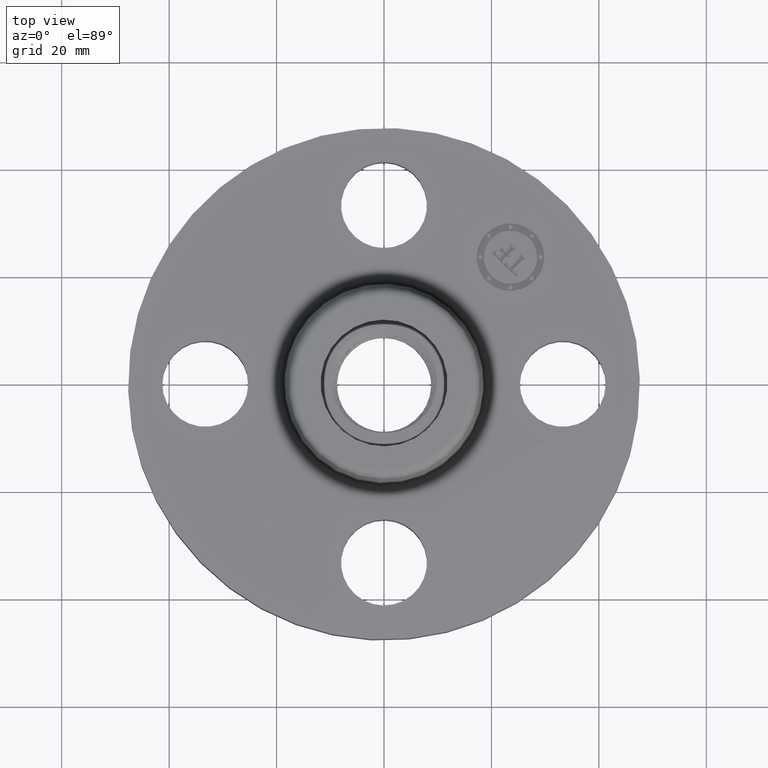
[diagram: clean part render]
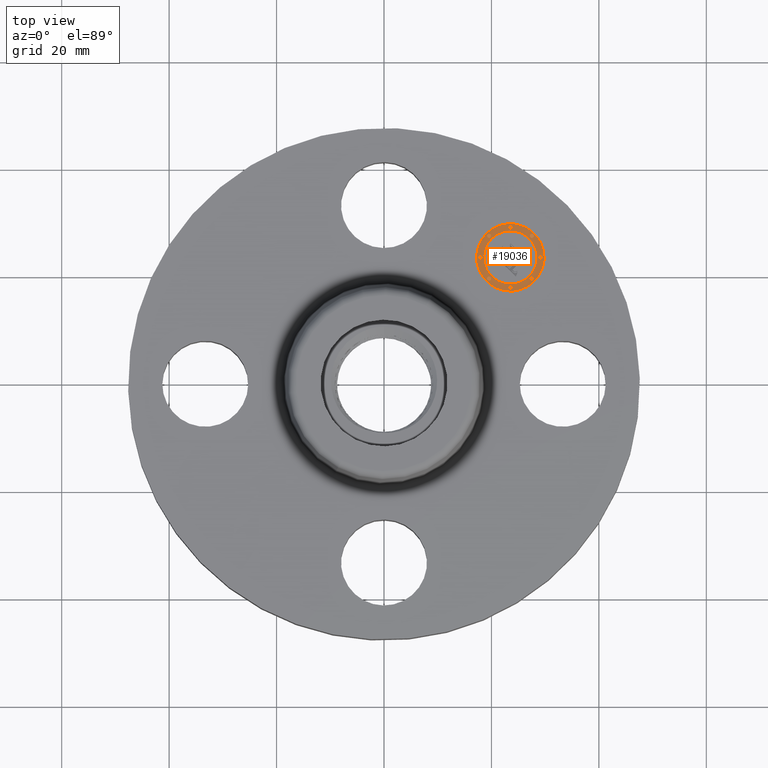
[diagram: same view with one face highlighted and labeled with its STEP entity id]
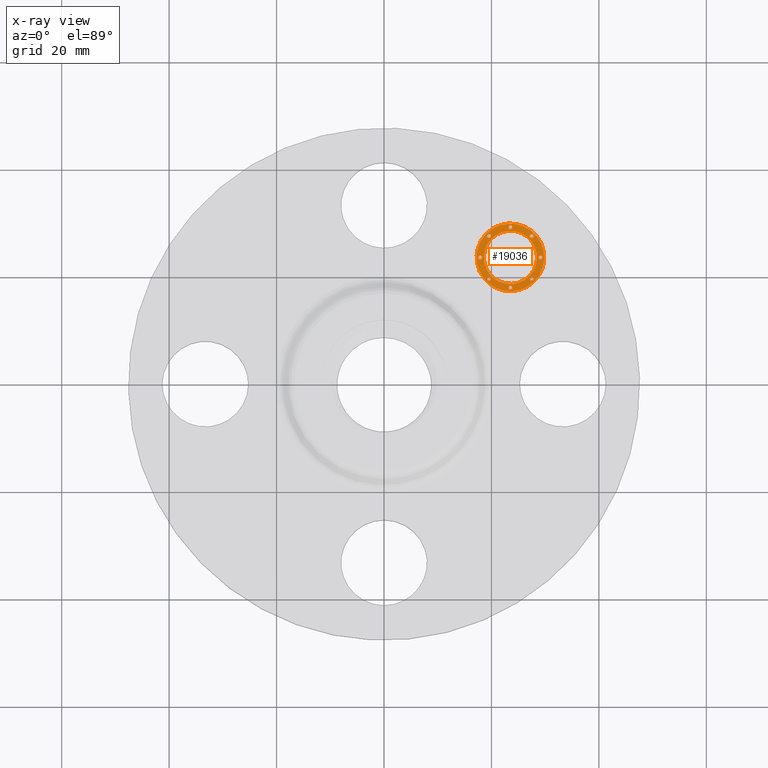
[diagram: x-ray of the same camera — body ghosted, the highlighted face saturated]
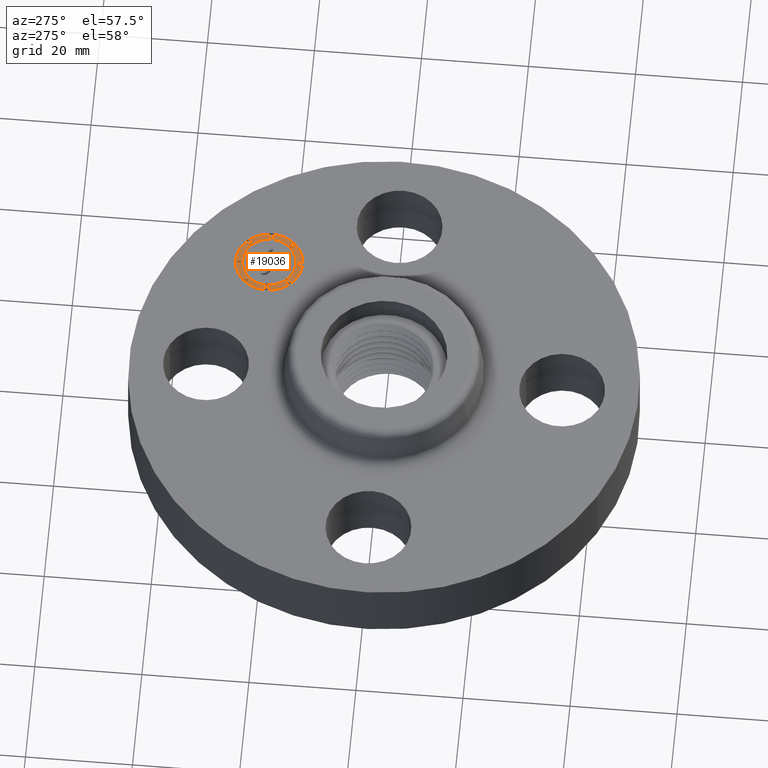
[diagram: same view with one face highlighted and labeled with its STEP entity id]
A machine part, top view. The second image highlights one B-rep face of the part: STEP entity #19036.
The next image is the same camera in x-ray: the body ghosted, the highlighted face saturated — about 0% of this face is hidden behind the body in this view.
A second angle (auxiliary view) of the same face is appended — the face is thin or edge-on in the first view.
In plain terms, the highlighted planar face has unit normal (0, -0, 1).
Its self-contained STEP definition (entity closure, byte-faithful):
#7687=AXIS2_PLACEMENT_3D('Plane Axis2P3D',#7684,#7685,#7686) ;
#18858=AXIS2_PLACEMENT_3D('Circle Axis2P3D',#18856,#18857,$) ;
#18867=AXIS2_PLACEMENT_3D('Circle Axis2P3D',#18865,#18866,$) ;
#18876=AXIS2_PLACEMENT_3D('Circle Axis2P3D',#18874,#18875,$) ;
#18885=AXIS2_PLACEMENT_3D('Circle Axis2P3D',#18883,#18884,$) ;
#18894=AXIS2_PLACEMENT_3D('Circle Axis2P3D',#18892,#18893,$) ;
#18903=AXIS2_PLACEMENT_3D('Circle Axis2P3D',#18901,#18902,$) ;
#18912=AXIS2_PLACEMENT_3D('Circle Axis2P3D',#18910,#18911,$) ;
#18921=AXIS2_PLACEMENT_3D('Circle Axis2P3D',#18919,#18920,$) ;
#18930=AXIS2_PLACEMENT_3D('Circle Axis2P3D',#18928,#18929,$) ;
#18939=AXIS2_PLACEMENT_3D('Circle Axis2P3D',#18937,#18938,$) ;
#18948=AXIS2_PLACEMENT_3D('Circle Axis2P3D',#18946,#18947,$) ;
#18957=AXIS2_PLACEMENT_3D('Circle Axis2P3D',#18955,#18956,$) ;
#18966=AXIS2_PLACEMENT_3D('Circle Axis2P3D',#18964,#18965,$) ;
#18975=AXIS2_PLACEMENT_3D('Circle Axis2P3D',#18973,#18974,$) ;
#18984=AXIS2_PLACEMENT_3D('Circle Axis2P3D',#18982,#18983,$) ;
#18993=AXIS2_PLACEMENT_3D('Circle Axis2P3D',#18991,#18992,$) ;
#19002=AXIS2_PLACEMENT_3D('Circle Axis2P3D',#19000,#19001,$) ;
#19011=AXIS2_PLACEMENT_3D('Circle Axis2P3D',#19009,#19010,$) ;
#19020=AXIS2_PLACEMENT_3D('Circle Axis2P3D',#19018,#19019,$) ;
#19029=AXIS2_PLACEMENT_3D('Circle Axis2P3D',#19027,#19028,$) ;
#7684=CARTESIAN_POINT('Axis2P3D Location',(0.,0.,0.485000000002)) ;
#18856=CARTESIAN_POINT('Axis2P3D Location',(0.926309883358,0.926309883358,0.485000000002)) ;
#18860=CARTESIAN_POINT('Vertex',(0.751300955014,1.1013188117,0.485000000002)) ;
#18862=CARTESIAN_POINT('Vertex',(1.1013188117,0.751300955014,0.485000000002)) ;
#18865=CARTESIAN_POINT('Axis2P3D Location',(0.926309883358,0.926309883358,0.485000000002)) ;
#18874=CARTESIAN_POINT('Axis2P3D Location',(0.926309883358,0.926309883358,0.485000000002)) ;
#18878=CARTESIAN_POINT('Vertex',(1.06419570569,0.788424061026,0.485000000002)) ;
#18880=CARTESIAN_POINT('Vertex',(0.788424061026,1.06419570569,0.485000000002)) ;
#18883=CARTESIAN_POINT('Axis2P3D Location',(0.926309883358,0.926309883358,0.485000000002)) ;
#18892=CARTESIAN_POINT('Axis2P3D Location',(0.76986250802,0.76986250802,0.485000000002)) ;
#18896=CARTESIAN_POINT('Vertex',(0.780469109738,0.759255906302,0.485000000002)) ;
#18898=CARTESIAN_POINT('Vertex',(0.759255906302,0.780469109738,0.485000000002)) ;
#18901=CARTESIAN_POINT('Axis2P3D Location',(0.76986250802,0.76986250802,0.485000000002)) ;
#18910=CARTESIAN_POINT('Axis2P3D Location',(0.76986250802,1.0827572587,0.485000000002)) ;
#18914=CARTESIAN_POINT('Vertex',(0.780469109738,1.07215065698,0.485000000002)) ;
#18916=CARTESIAN_POINT('Vertex',(0.759255906302,1.09336386041,0.485000000002)) ;
#18919=CARTESIAN_POINT('Axis2P3D Location',(0.76986250802,1.0827572587,0.485000000002)) ;
#18928=CARTESIAN_POINT('Axis2P3D Location',(0.705059883357,0.926309883358,0.485000000002)) ;
#18932=CARTESIAN_POINT('Vertex',(0.715666485075,0.91570328164,0.485000000002)) ;
#18934=CARTESIAN_POINT('Vertex',(0.694453281639,0.936916485076,0.485000000002)) ;
#18937=CARTESIAN_POINT('Axis2P3D Location',(0.705059883357,0.926309883358,0.485000000002)) ;
#18946=CARTESIAN_POINT('Axis2P3D Location',(1.0827572587,1.0827572587,0.485000000002)) ;
#18950=CARTESIAN_POINT('Vertex',(1.09336386041,1.07215065698,0.485000000002)) ;
#18952=CARTESIAN_POINT('Vertex',(1.07215065698,1.09336386041,0.485000000002)) ;
#18955=CARTESIAN_POINT('Axis2P3D Location',(1.0827572587,1.0827572587,0.485000000002)) ;
#18964=CARTESIAN_POINT('Axis2P3D Location',(0.926309883358,1.14755988336,0.485000000002)) ;
#18968=CARTESIAN_POINT('Vertex',(0.936916485076,1.13695328164,0.485000000002)) ;
#18970=CARTESIAN_POINT('Vertex',(0.91570328164,1.15816648508,0.485000000002)) ;
#18973=CARTESIAN_POINT('Axis2P3D Location',(0.926309883358,1.14755988336,0.485000000002)) ;
#18982=CARTESIAN_POINT('Axis2P3D Location',(1.0827572587,0.76986250802,0.485000000002)) ;
#18986=CARTESIAN_POINT('Vertex',(1.07215065698,0.780469109738,0.485000000002)) ;
#18988=CARTESIAN_POINT('Vertex',(1.09336386041,0.759255906302,0.485000000002)) ;
#18991=CARTESIAN_POINT('Axis2P3D Location',(1.0827572587,0.76986250802,0.485000000002)) ;
#19000=CARTESIAN_POINT('Axis2P3D Location',(0.926309883358,0.705059883357,0.485000000002)) ;
#19004=CARTESIAN_POINT('Vertex',(0.91570328164,0.715666485075,0.485000000002)) ;
#19006=CARTESIAN_POINT('Vertex',(0.936916485076,0.694453281639,0.485000000002)) ;
#19009=CARTESIAN_POINT('Axis2P3D Location',(0.926309883358,0.705059883357,0.485000000002)) ;
#19018=CARTESIAN_POINT('Axis2P3D Location',(1.14755988336,0.926309883358,0.485000000002)) ;
#19022=CARTESIAN_POINT('Vertex',(1.13695328164,0.936916485076,0.485000000002)) ;
#19024=CARTESIAN_POINT('Vertex',(1.15816648508,0.91570328164,0.485000000002)) ;
#19027=CARTESIAN_POINT('Axis2P3D Location',(1.14755988336,0.926309883358,0.485000000002)) ;
#7685=DIRECTION('Axis2P3D Direction',(0.,-0.,0.0393700787402)) ;
#7686=DIRECTION('Axis2P3D XDirection',(0.027838849653,0.027838849653,0.)) ;
#18857=DIRECTION('Axis2P3D Direction',(0.,-0.,0.0393700787402)) ;
#18866=DIRECTION('Axis2P3D Direction',(0.,-0.,0.0393700787402)) ;
#18875=DIRECTION('Axis2P3D Direction',(0.,-0.,0.0393700787402)) ;
#18884=DIRECTION('Axis2P3D Direction',(0.,-0.,0.0393700787402)) ;
#18893=DIRECTION('Axis2P3D Direction',(0.,-0.,0.0393700787402)) ;
#18902=DIRECTION('Axis2P3D Direction',(0.,-0.,0.0393700787402)) ;
#18911=DIRECTION('Axis2P3D Direction',(0.,-0.,0.0393700787402)) ;
#18920=DIRECTION('Axis2P3D Direction',(0.,-0.,0.0393700787402)) ;
#18929=DIRECTION('Axis2P3D Direction',(0.,-0.,0.0393700787402)) ;
#18938=DIRECTION('Axis2P3D Direction',(0.,-0.,0.0393700787402)) ;
#18947=DIRECTION('Axis2P3D Direction',(0.,-0.,0.0393700787402)) ;
#18956=DIRECTION('Axis2P3D Direction',(0.,-0.,0.0393700787402)) ;
#18965=DIRECTION('Axis2P3D Direction',(0.,-0.,0.0393700787402)) ;
#18974=DIRECTION('Axis2P3D Direction',(0.,-0.,0.0393700787402)) ;
#18983=DIRECTION('Axis2P3D Direction',(0.,-0.,0.0393700787402)) ;
#18992=DIRECTION('Axis2P3D Direction',(0.,-0.,0.0393700787402)) ;
#19001=DIRECTION('Axis2P3D Direction',(0.,-0.,0.0393700787402)) ;
#19010=DIRECTION('Axis2P3D Direction',(0.,-0.,0.0393700787402)) ;
#19019=DIRECTION('Axis2P3D Direction',(0.,-0.,0.0393700787402)) ;
#19028=DIRECTION('Axis2P3D Direction',(0.,-0.,0.0393700787402)) ;
#18871=ORIENTED_EDGE('',*,*,#18864,.T.) ;
#18872=ORIENTED_EDGE('',*,*,#18869,.T.) ;
#18889=ORIENTED_EDGE('',*,*,#18882,.F.) ;
#18890=ORIENTED_EDGE('',*,*,#18887,.F.) ;
#18907=ORIENTED_EDGE('',*,*,#18900,.F.) ;
#18908=ORIENTED_EDGE('',*,*,#18905,.F.) ;
#18925=ORIENTED_EDGE('',*,*,#18918,.F.) ;
#18926=ORIENTED_EDGE('',*,*,#18923,.F.) ;
#18943=ORIENTED_EDGE('',*,*,#18936,.F.) ;
#18944=ORIENTED_EDGE('',*,*,#18941,.F.) ;
#18961=ORIENTED_EDGE('',*,*,#18954,.F.) ;
#18962=ORIENTED_EDGE('',*,*,#18959,.F.) ;
#18979=ORIENTED_EDGE('',*,*,#18972,.F.) ;
#18980=ORIENTED_EDGE('',*,*,#18977,.F.) ;
#18997=ORIENTED_EDGE('',*,*,#18990,.F.) ;
#18998=ORIENTED_EDGE('',*,*,#18995,.F.) ;
#19015=ORIENTED_EDGE('',*,*,#19008,.F.) ;
#19016=ORIENTED_EDGE('',*,*,#19013,.F.) ;
#19033=ORIENTED_EDGE('',*,*,#19026,.F.) ;
#19034=ORIENTED_EDGE('',*,*,#19031,.F.) ;
#18891=FACE_BOUND('',#18888,.T.) ;
#18909=FACE_BOUND('',#18906,.T.) ;
#18927=FACE_BOUND('',#18924,.T.) ;
#18945=FACE_BOUND('',#18942,.T.) ;
#18963=FACE_BOUND('',#18960,.T.) ;
#18981=FACE_BOUND('',#18978,.T.) ;
#18999=FACE_BOUND('',#18996,.T.) ;
#19017=FACE_BOUND('',#19014,.T.) ;
#19035=FACE_BOUND('',#19032,.T.) ;
#19036=ADVANCED_FACE('PartBody',(#18873,#18891,#18909,#18927,#18945,#18963,#18981,#18999,#19017,#19035),#7688,.T.) ;
#18859=CIRCLE('generated circle',#18858,0.247500000001) ;
#18868=CIRCLE('generated circle',#18867,0.247500000001) ;
#18877=CIRCLE('generated circle',#18876,0.195000000001) ;
#18886=CIRCLE('generated circle',#18885,0.195000000001) ;
#18895=CIRCLE('generated circle',#18894,0.0150000000001) ;
#18904=CIRCLE('generated circle',#18903,0.0150000000001) ;
#18913=CIRCLE('generated circle',#18912,0.0150000000001) ;
#18922=CIRCLE('generated circle',#18921,0.0150000000001) ;
#18931=CIRCLE('generated circle',#18930,0.0150000000001) ;
#18940=CIRCLE('generated circle',#18939,0.0150000000001) ;
#18949=CIRCLE('generated circle',#18948,0.0150000000001) ;
#18958=CIRCLE('generated circle',#18957,0.0150000000001) ;
#18967=CIRCLE('generated circle',#18966,0.0150000000001) ;
#18976=CIRCLE('generated circle',#18975,0.0150000000001) ;
#18985=CIRCLE('generated circle',#18984,0.0150000000001) ;
#18994=CIRCLE('generated circle',#18993,0.0150000000001) ;
#19003=CIRCLE('generated circle',#19002,0.0150000000001) ;
#19012=CIRCLE('generated circle',#19011,0.0150000000001) ;
#19021=CIRCLE('generated circle',#19020,0.0150000000001) ;
#19030=CIRCLE('generated circle',#19029,0.0150000000001) ;
#18864=EDGE_CURVE('',#18861,#18863,#18859,.T.) ;
#18869=EDGE_CURVE('',#18863,#18861,#18868,.T.) ;
#18882=EDGE_CURVE('',#18879,#18881,#18877,.T.) ;
#18887=EDGE_CURVE('',#18881,#18879,#18886,.T.) ;
#18900=EDGE_CURVE('',#18897,#18899,#18895,.T.) ;
#18905=EDGE_CURVE('',#18899,#18897,#18904,.T.) ;
#18918=EDGE_CURVE('',#18915,#18917,#18913,.T.) ;
#18923=EDGE_CURVE('',#18917,#18915,#18922,.T.) ;
#18936=EDGE_CURVE('',#18933,#18935,#18931,.T.) ;
#18941=EDGE_CURVE('',#18935,#18933,#18940,.T.) ;
#18954=EDGE_CURVE('',#18951,#18953,#18949,.T.) ;
#18959=EDGE_CURVE('',#18953,#18951,#18958,.T.) ;
#18972=EDGE_CURVE('',#18969,#18971,#18967,.T.) ;
#18977=EDGE_CURVE('',#18971,#18969,#18976,.T.) ;
#18990=EDGE_CURVE('',#18987,#18989,#18985,.T.) ;
#18995=EDGE_CURVE('',#18989,#18987,#18994,.T.) ;
#19008=EDGE_CURVE('',#19005,#19007,#19003,.T.) ;
#19013=EDGE_CURVE('',#19007,#19005,#19012,.T.) ;
#19026=EDGE_CURVE('',#19023,#19025,#19021,.T.) ;
#19031=EDGE_CURVE('',#19025,#19023,#19030,.T.) ;
#18870=EDGE_LOOP('',(#18871,#18872)) ;
#18888=EDGE_LOOP('',(#18889,#18890)) ;
#18906=EDGE_LOOP('',(#18907,#18908)) ;
#18924=EDGE_LOOP('',(#18925,#18926)) ;
#18942=EDGE_LOOP('',(#18943,#18944)) ;
#18960=EDGE_LOOP('',(#18961,#18962)) ;
#18978=EDGE_LOOP('',(#18979,#18980)) ;
#18996=EDGE_LOOP('',(#18997,#18998)) ;
#19014=EDGE_LOOP('',(#19015,#19016)) ;
#19032=EDGE_LOOP('',(#19033,#19034)) ;
#18873=FACE_OUTER_BOUND('',#18870,.T.) ;
#7688=PLANE('',#7687) ;
#18861=VERTEX_POINT('',#18860) ;
#18863=VERTEX_POINT('',#18862) ;
#18879=VERTEX_POINT('',#18878) ;
#18881=VERTEX_POINT('',#18880) ;
#18897=VERTEX_POINT('',#18896) ;
#18899=VERTEX_POINT('',#18898) ;
#18915=VERTEX_POINT('',#18914) ;
#18917=VERTEX_POINT('',#18916) ;
#18933=VERTEX_POINT('',#18932) ;
#18935=VERTEX_POINT('',#18934) ;
#18951=VERTEX_POINT('',#18950) ;
#18953=VERTEX_POINT('',#18952) ;
#18969=VERTEX_POINT('',#18968) ;
#18971=VERTEX_POINT('',#18970) ;
#18987=VERTEX_POINT('',#18986) ;
#18989=VERTEX_POINT('',#18988) ;
#19005=VERTEX_POINT('',#19004) ;
#19007=VERTEX_POINT('',#19006) ;
#19023=VERTEX_POINT('',#19022) ;
#19025=VERTEX_POINT('',#19024) ;